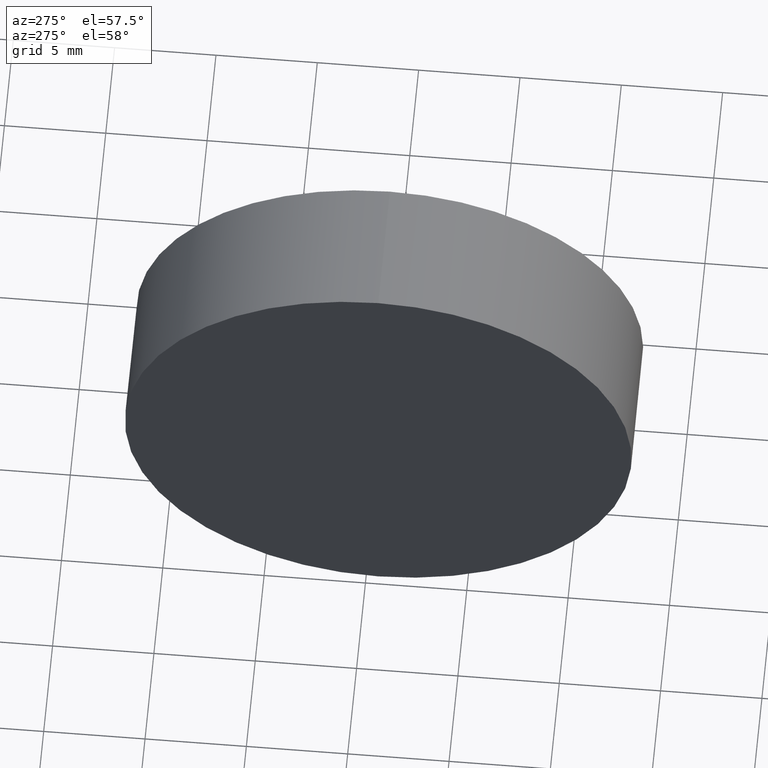
[diagram: clean part render]
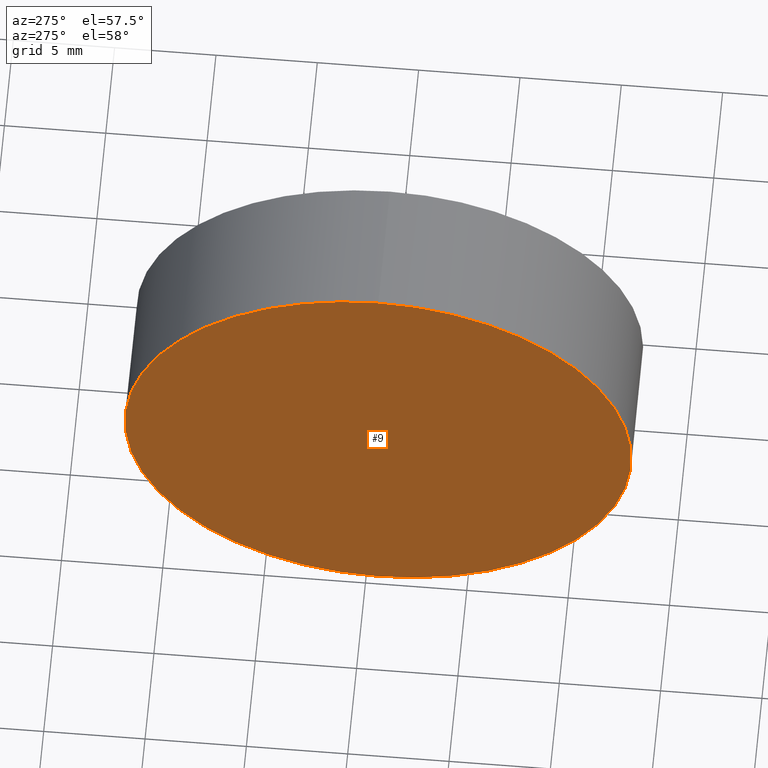
[diagram: same view with one face highlighted and labeled with its STEP entity id]
A machine part, auxiliary view. The second image highlights one B-rep face of the part: STEP entity #9.
In plain terms, the highlighted planar face has unit normal (1, 0, 0).
Its self-contained STEP definition (entity closure, byte-faithful):
#3 = DIRECTION ( 'NONE',  ( 0.0000000000000000000, 0.0000000000000000000, 1.000000000000000000 ) ) ;
#7 = CIRCLE ( 'NONE', #74, 12.49999999999999600 ) ;
#9 = ADVANCED_FACE ( 'NONE', ( #104 ), #38, .F. ) ;
#21 = ORIENTED_EDGE ( 'NONE', *, *, #174, .T. ) ;
#25 = DIRECTION ( 'NONE',  ( 0.0000000000000000000, 0.0000000000000000000, -1.000000000000000000 ) ) ;
#38 = PLANE ( 'NONE',  #149 ) ;
#39 = AXIS2_PLACEMENT_3D ( 'NONE', #186, #138, #3 ) ;
#63 = VERTEX_POINT ( 'NONE', #119 ) ;
#67 = EDGE_CURVE ( 'NONE', #63, #84, #106, .T. ) ;
#74 = AXIS2_PLACEMENT_3D ( 'NONE', #88, #141, #126 ) ;
#84 = VERTEX_POINT ( 'NONE', #179 ) ;
#88 = CARTESIAN_POINT ( 'NONE',  ( 115.0926555349195200, 69.37802112337243400, 0.0000000000000000000 ) ) ;
#104 = FACE_OUTER_BOUND ( 'NONE', #129, .T. ) ;
#106 = CIRCLE ( 'NONE', #39, 12.49999999999999600 ) ;
#109 = DIRECTION ( 'NONE',  ( 1.000000000000000000, 0.0000000000000000000, 0.0000000000000000000 ) ) ;
#119 = CARTESIAN_POINT ( 'NONE',  ( 115.0926555349195200, 69.37802112337243400, 12.49999999999999600 ) ) ;
#126 = DIRECTION ( 'NONE',  ( 0.0000000000000000000, 0.0000000000000000000, 1.000000000000000000 ) ) ;
#129 = EDGE_LOOP ( 'NONE', ( #175, #21 ) ) ;
#138 = DIRECTION ( 'NONE',  ( -1.000000000000000000, -0.0000000000000000000, -0.0000000000000000000 ) ) ;
#141 = DIRECTION ( 'NONE',  ( -1.000000000000000000, -0.0000000000000000000, -0.0000000000000000000 ) ) ;
#149 = AXIS2_PLACEMENT_3D ( 'NONE', #155, #109, #25 ) ;
#155 = CARTESIAN_POINT ( 'NONE',  ( 115.0926555349195200, 69.37802112337243400, 0.0000000000000000000 ) ) ;
#174 = EDGE_CURVE ( 'NONE', #84, #63, #7, .T. ) ;
#175 = ORIENTED_EDGE ( 'NONE', *, *, #67, .T. ) ;
#179 = CARTESIAN_POINT ( 'NONE',  ( 115.0926555349195200, 69.37802112337243400, -12.49999999999999600 ) ) ;
#186 = CARTESIAN_POINT ( 'NONE',  ( 115.0926555349195200, 69.37802112337243400, 0.0000000000000000000 ) ) ;